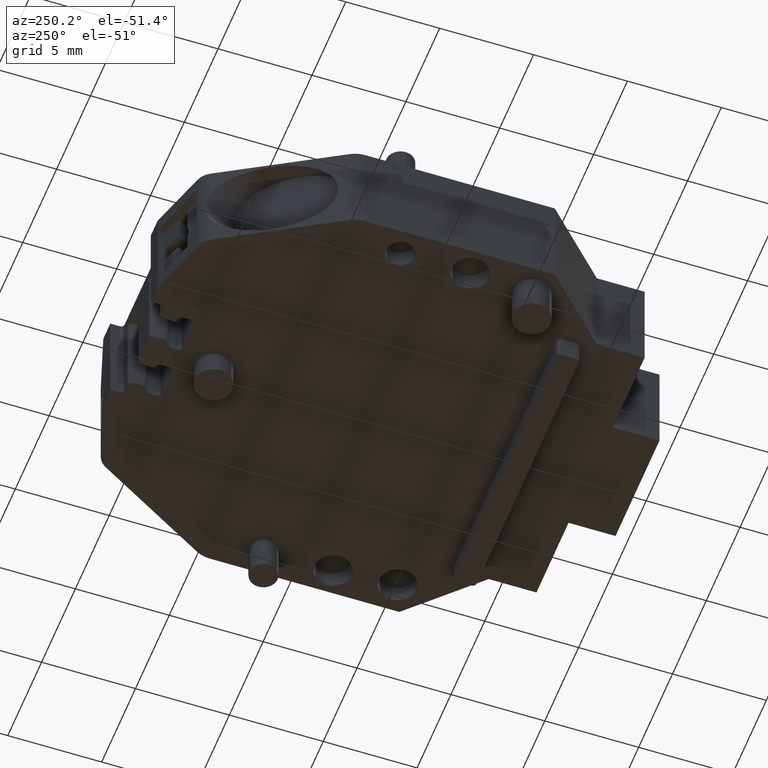
[diagram: clean part render]
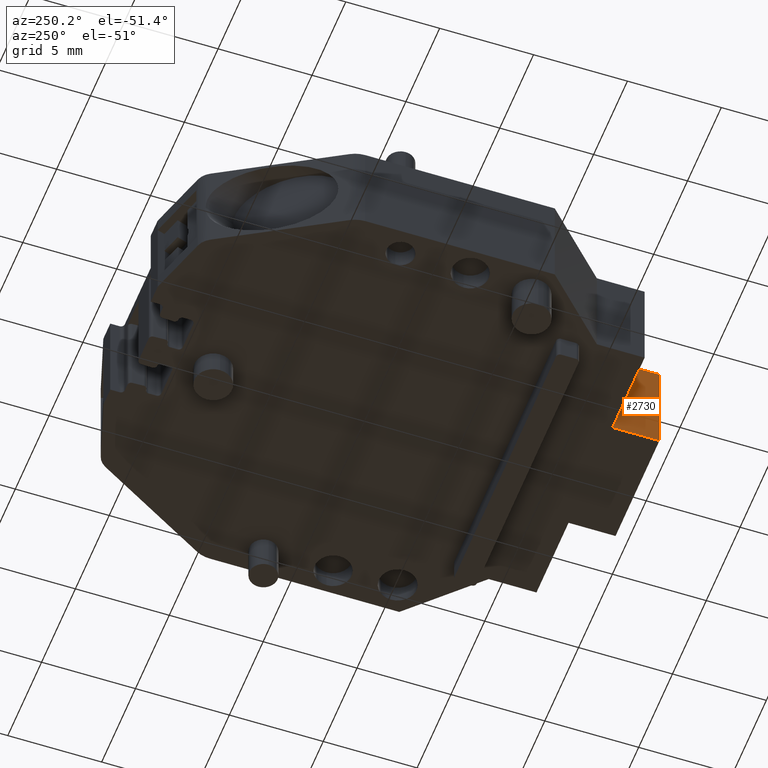
[diagram: same view with one face highlighted and labeled with its STEP entity id]
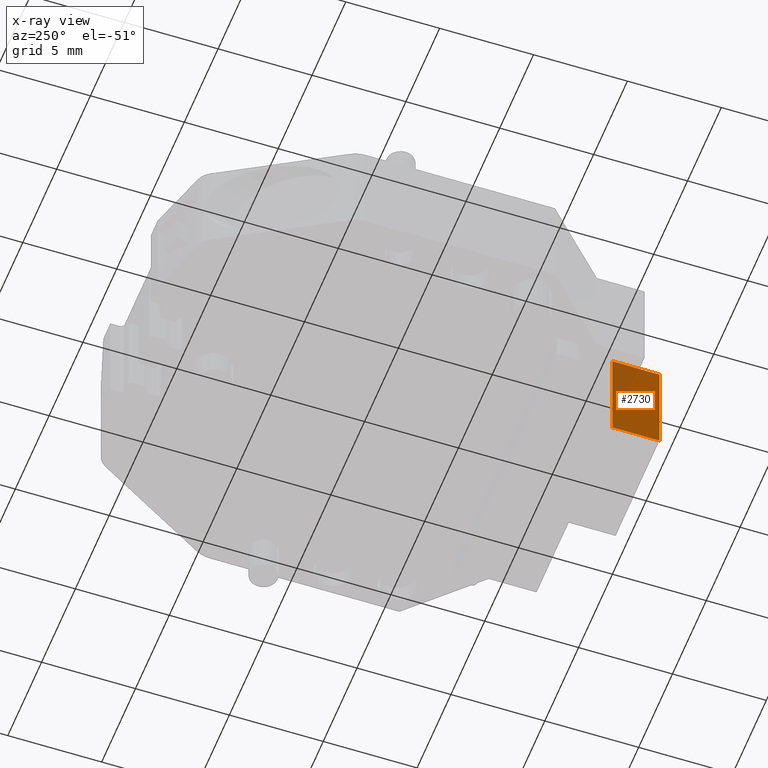
[diagram: x-ray of the same camera — body ghosted, the highlighted face saturated]
A machine part, auxiliary view. The second image highlights one B-rep face of the part: STEP entity #2730.
The next image is the same camera in x-ray: the body ghosted, the highlighted face saturated — about 19% of this face is hidden behind the body in this view.
In plain terms, the highlighted planar face has unit normal (-1, 0, 0).
Its self-contained STEP definition (entity closure, byte-faithful):
#43 = CARTESIAN_POINT ( 'NONE',  ( 288.0359378434521300, 430.0003766282130800, -56.83000000000001300 ) ) ;
#58 = CARTESIAN_POINT ( 'NONE',  ( 288.0359378434521300, 430.0003766282130800, -51.53000000000000100 ) ) ;
#66 = CARTESIAN_POINT ( 'NONE',  ( 288.0359378434521300, 432.5003766282130200, -56.83000000000001300 ) ) ;
#75 = CARTESIAN_POINT ( 'NONE',  ( 288.0359378434521300, 432.5003766282130200, -51.53000000000000100 ) ) ;
#864 = EDGE_LOOP ( 'NONE', ( #1260, #1214, #1263, #1246 ) ) ;
#1214 = ORIENTED_EDGE ( 'NONE', *, *, #2792, .F. ) ;
#1246 = ORIENTED_EDGE ( 'NONE', *, *, #2781, .T. ) ;
#1260 = ORIENTED_EDGE ( 'NONE', *, *, #2802, .F. ) ;
#1263 = ORIENTED_EDGE ( 'NONE', *, *, #2818, .T. ) ;
#1948 = VERTEX_POINT ( 'NONE', #58 ) ;
#1963 = VERTEX_POINT ( 'NONE', #75 ) ;
#1988 = VERTEX_POINT ( 'NONE', #66 ) ;
#2000 = VERTEX_POINT ( 'NONE', #43 ) ;
#2730 = ADVANCED_FACE ( 'NONE', ( #4562 ), #4544, .T. ) ;
#2781 = EDGE_CURVE ( 'NONE', #1988, #2000, #4816, .T. ) ;
#2792 = EDGE_CURVE ( 'NONE', #1963, #1948, #4852, .T. ) ;
#2802 = EDGE_CURVE ( 'NONE', #1948, #2000, #4884, .T. ) ;
#2818 = EDGE_CURVE ( 'NONE', #1963, #1988, #4907, .T. ) ;
#4139 = AXIS2_PLACEMENT_3D ( 'NONE', #4564, #4556, #4550 ) ;
#4145 = VECTOR ( 'NONE', #4786, 1000.000000000000000 ) ;
#4194 = VECTOR ( 'NONE', #4953, 1000.000000000000000 ) ;
#4224 = VECTOR ( 'NONE', #4854, 1000.000000000000000 ) ;
#4230 = VECTOR ( 'NONE', #4902, 1000.000000000000000 ) ;
#4544 = PLANE ( 'NONE',  #4139 ) ;
#4550 = DIRECTION ( 'NONE',  ( 0.0000000000000000000, 0.0000000000000000000, 1.000000000000000000 ) ) ;
#4556 = DIRECTION ( 'NONE',  ( -1.000000000000000000, 0.0000000000000000000, 0.0000000000000000000 ) ) ;
#4562 = FACE_OUTER_BOUND ( 'NONE', #864, .T. ) ;
#4564 = CARTESIAN_POINT ( 'NONE',  ( 288.0359378434521300, 432.5003766282130200, -34.64785193383039500 ) ) ;
#4786 = DIRECTION ( 'NONE',  ( -0.0000000000000000000, -1.000000000000000000, 0.0000000000000000000 ) ) ;
#4816 = LINE ( 'NONE', #4821, #4145 ) ;
#4821 = CARTESIAN_POINT ( 'NONE',  ( 288.0359378434521300, 432.5003766282130200, -56.83000000000000500 ) ) ;
#4852 = LINE ( 'NONE', #4862, #4224 ) ;
#4854 = DIRECTION ( 'NONE',  ( 0.0000000000000000000, -1.000000000000000000, -0.0000000000000000000 ) ) ;
#4862 = CARTESIAN_POINT ( 'NONE',  ( 288.0359378434521300, 448.6419330427179900, -51.53000000000000100 ) ) ;
#4884 = LINE ( 'NONE', #4892, #4230 ) ;
#4892 = CARTESIAN_POINT ( 'NONE',  ( 288.0359378434521300, 430.0003766282131300, -34.64785193383039500 ) ) ;
#4902 = DIRECTION ( 'NONE',  ( 0.0000000000000000000, -0.0000000000000000000, -1.000000000000000000 ) ) ;
#4907 = LINE ( 'NONE', #4915, #4194 ) ;
#4915 = CARTESIAN_POINT ( 'NONE',  ( 288.0359378434521300, 432.5003766282130200, -34.64785193383039500 ) ) ;
#4953 = DIRECTION ( 'NONE',  ( -0.0000000000000000000, -0.0000000000000000000, -1.000000000000000000 ) ) ;